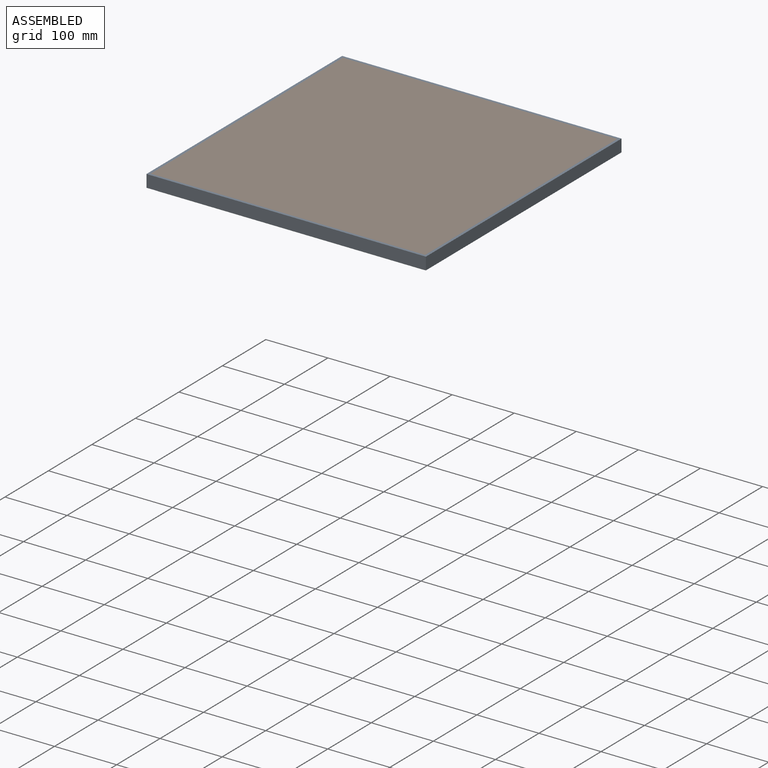
[diagram: assembled view]
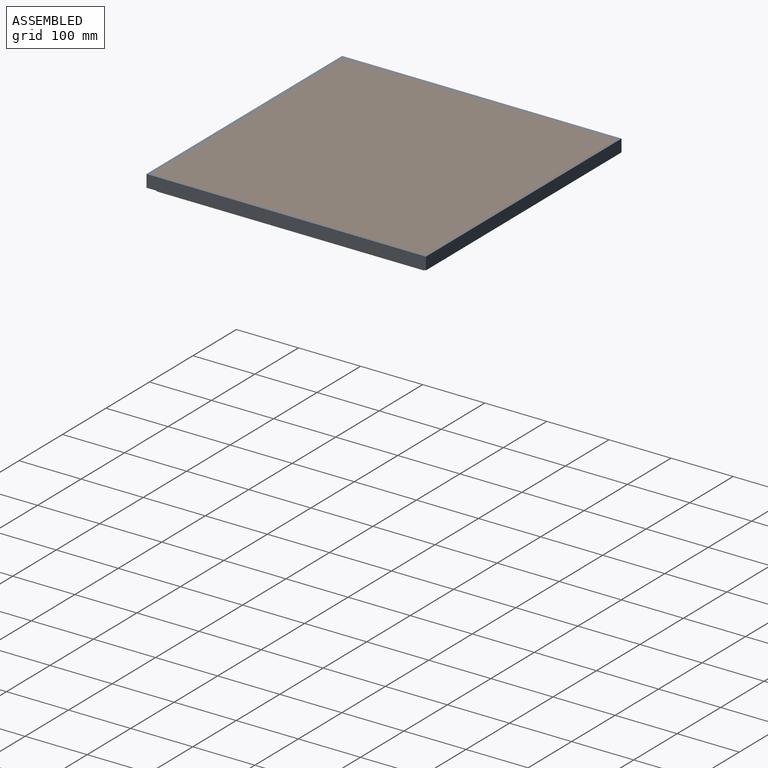
[diagram: assembled view, second angle]
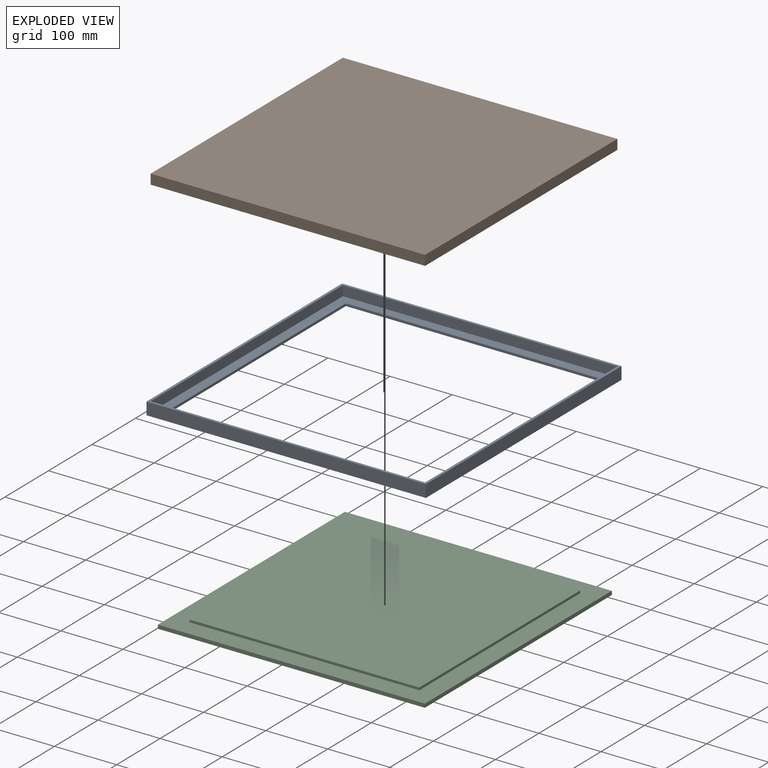
[diagram: exploded view]
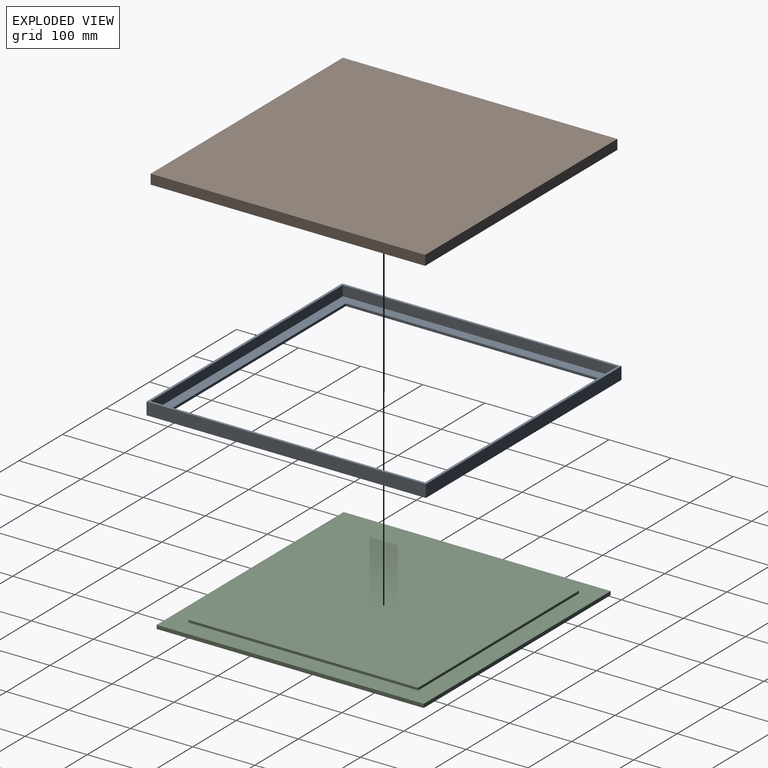
[diagram: exploded view, second angle]
ASSEMBLY  parts=3 mates=4
PART A: 15 faces, bbox 450x450x20 mm
  f0: plane 442x16mm, normal (0,1,0), area 7072mm2, adj f1,f3,f9,f14
  f1: plane 442x16mm, normal (1,0,0), area 7072mm2, adj f0,f2,f9,f14
  f2: plane 442x16mm, normal (0,-1,0), area 7072mm2, adj f1,f3,f9,f14
  f3: plane 442x16mm, normal (-1,0,0), area 7072mm2, adj f0,f2,f9,f14
  f4: plane 450x20mm, normal (0,1,0), area 9000mm2, adj f5,f7,f8,f9
  f5: plane 450x20mm, normal (-1,0,0), area 9000mm2, adj f4,f6,f8,f9
  f6: plane 450x20mm, normal (0,-1,0), area 9000mm2, adj f5,f7,f8,f9
  f7: plane 450x20mm, normal (1,0,0), area 9000mm2, adj f4,f6,f8,f9
  f8: plane 450x450mm, normal (0,0,-1), area 34400mm2, adj f4,f5,f6,f7,f10,f11,f12,f13
  f9: plane 450x450mm, normal (0,0,1), area 7136mm2, adj f0,f1,f2,f3,f4,f5,f6,f7
  f10: plane 410x4mm, normal (1,0,0), area 1640mm2, adj f8,f11,f13,f14
  f11: plane 410x4mm, normal (0,1,0), area 1640mm2, adj f8,f10,f12,f14
  f12: plane 410x4mm, normal (-1,0,0), area 1640mm2, adj f8,f11,f13,f14
  f13: plane 410x4mm, normal (0,-1,0), area 1640mm2, adj f8,f10,f12,f14
  f14: plane 442x442mm, normal (0,0,1), area 27264mm2, adj f0,f1,f2,f3,f10,f11,f12,f13
PART B: 6 faces, bbox 442x442x16 mm
  f0: plane 442x16mm, normal (-1,0,0), area 7072mm2, adj f1,f3,f4,f5
  f1: plane 442x16mm, normal (0,-1,0), area 7072mm2, adj f0,f2,f4,f5
  f2: plane 442x16mm, normal (1,0,0), area 7072mm2, adj f1,f3,f4,f5
  f3: plane 442x16mm, normal (0,1,0), area 7072mm2, adj f0,f2,f4,f5
  f4: plane 442x442mm, normal (0,0,1), area 195364mm2, adj f0,f1,f2,f3
  f5: plane 442x442mm, normal (0,0,-1), area 195364mm2, adj f0,f1,f2,f3
PART C: 11 faces, bbox 430x430x10 mm
  f0: plane 430x430mm, normal (0,0,1), area 48000mm2, adj f1,f2,f3,f4,f6,f7,f8,f9
  f1: plane 430x6mm, normal (-1,0,0), area 2580mm2, adj f0,f2,f4,f5
  f2: plane 430x6mm, normal (0,-1,0), area 2580mm2, adj f0,f1,f3,f5
  f3: plane 430x6mm, normal (1,0,0), area 2580mm2, adj f0,f2,f4,f5
  f4: plane 430x6mm, normal (0,1,0), area 2580mm2, adj f0,f1,f3,f5
  f5: plane 430x430mm, normal (0,0,-1), area 184900mm2, adj f1,f2,f3,f4
  f6: plane 370x4mm, normal (-1,0,0), area 1480mm2, adj f0,f7,f9,f10
  f7: plane 370x4mm, normal (0,-1,0), area 1480mm2, adj f0,f6,f8,f10
  f8: plane 370x4mm, normal (1,0,0), area 1480mm2, adj f0,f7,f9,f10
  f9: plane 370x4mm, normal (0,1,0), area 1480mm2, adj f0,f6,f8,f10
  f10: plane 370x370mm, normal (0,0,1), area 136900mm2, adj f6,f7,f8,f9
PLACE A t=(5.8,-44.31,-64.95)mm
PLACE B t=(5.8,-44.31,-80.95)mm
PLACE C t=(12.98,-38.02,-84.95)mm
MATE planar A.f14 <-> B.f5  axis (0,0,1) through (226.8,176.69,-80.95)mm
MATE planar B.f5 <-> C.f10  axis (0,0,-1) through (226.8,176.69,-80.95)mm
MATE planar A.f0 <-> B.f1  axis (0,1,0) through (226.8,-44.31,-72.95)mm
MATE planar B.f2 <-> A.f3  axis (1,0,0) through (447.8,176.69,-72.95)mm
